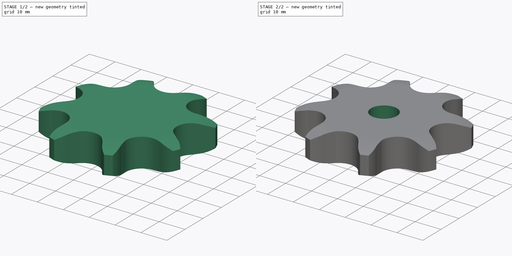
[diagram: build sequence overview — one tinted view per stage of 2, left to right]
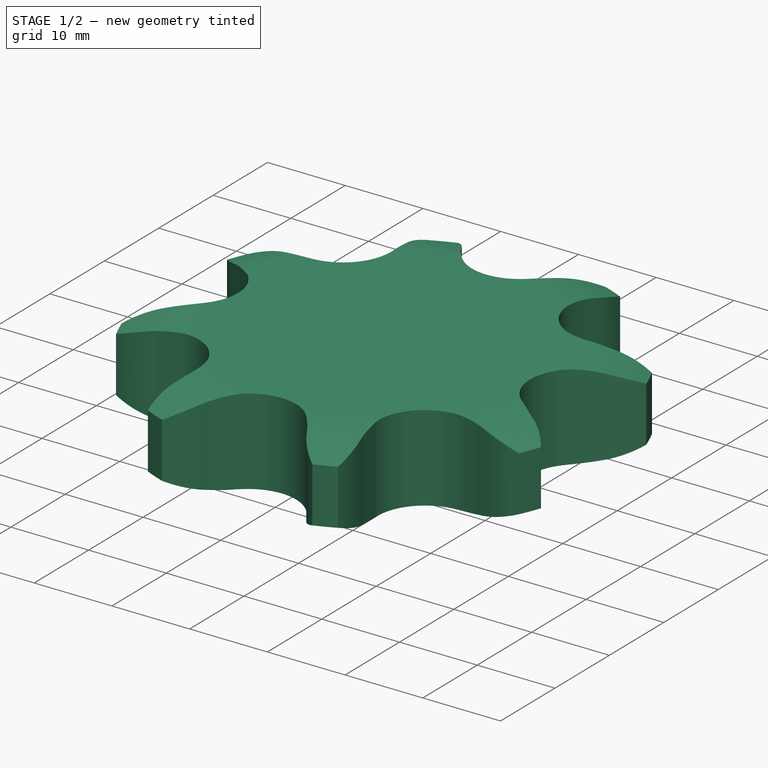
[diagram: stage 1 of 2 — iso view after this stage's code; geometry added in this stage tinted green]
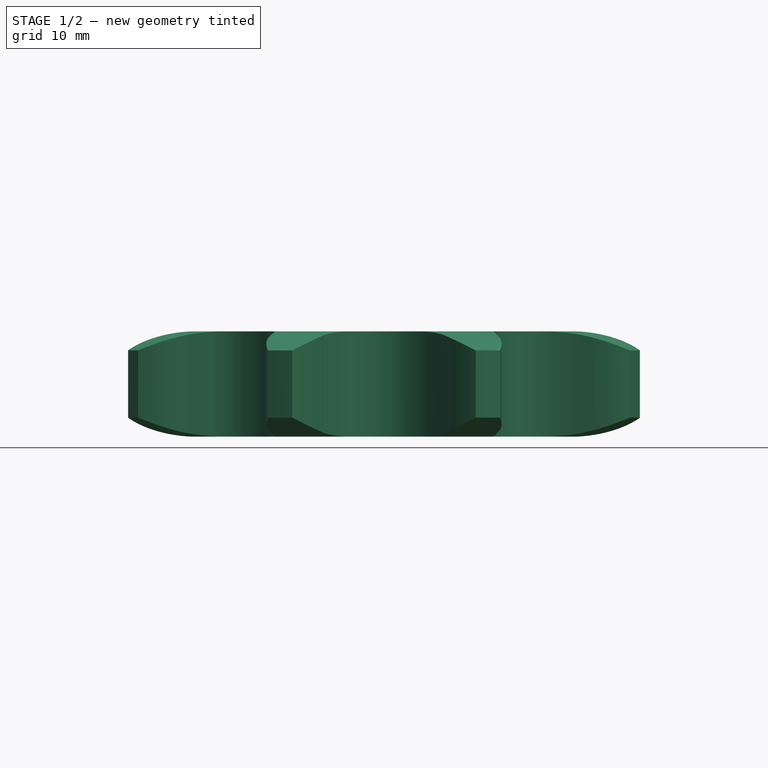
[diagram: stage 1 of 2 — front view after this stage's code; geometry added in this stage tinted green]
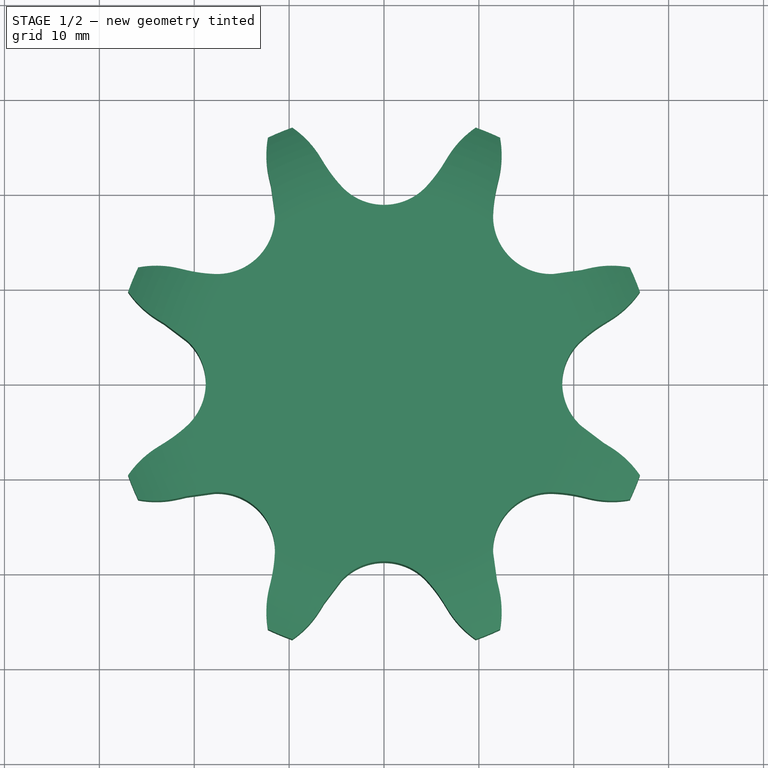
[diagram: stage 1 of 2 — top view after this stage's code; geometry added in this stage tinted green]
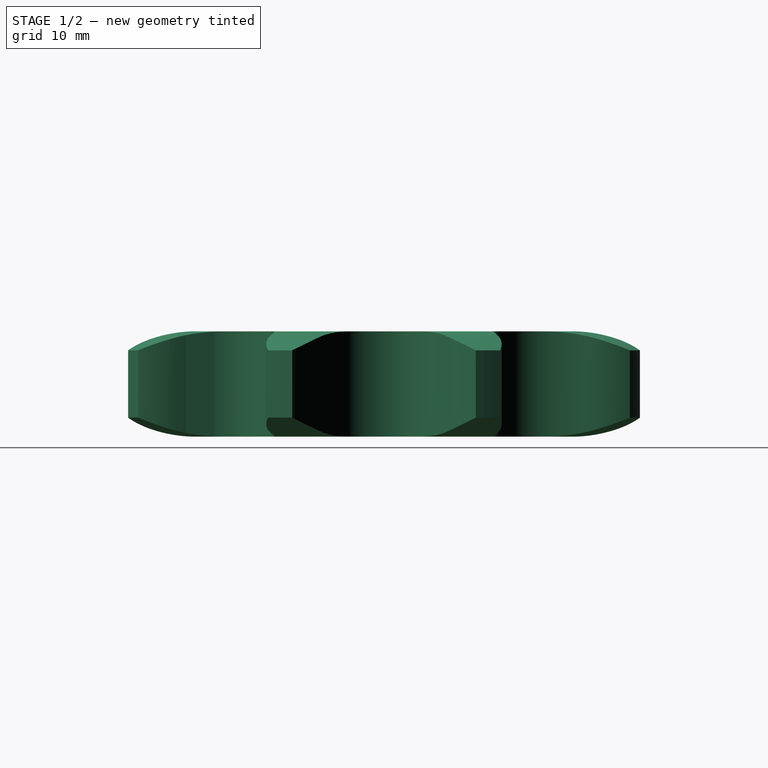
[diagram: stage 1 of 2 — right view after this stage's code; geometry added in this stage tinted green]
FCSTD DOCUMENT  (FreeCAD 0.21R33675 (Git))
Label: Plate Wheel simplex ¾x⁷⁄₁₆
License: Attribution 4.0 International (CC BY 4.0)
LicenseURL: http://creativecommons.org/licenses/by/4.0/
objects: Sketcher::SketchObject×2, Spreadsheet::Sheet×1, Part::Part2DObjectPython×1, PartDesign::Pad×1, PartDesign::Groove×1, PartDesign::Pocket×1, PartDesign::Body×1
note: 10 computed .brp shape members not serialized (recipe doc carries the construction recipe); baked Part::Feature solids carry a one-line shape summary decoded from their .brp

FEATURE [Spreadsheet::Sheet] Spreadsheet  label="Data"
  TeethNumber = 0
  cells = A1='Teeth Number; B1='P (Pitch); C1='Wc (Chain width); D1='Dr (Roller diameter); E1='Tr (Tooth radius); F1='Rw (Radius width); G1='Wt (Tooth width); H1='z (Number of teeth); I1='De (External Diameter); J1='Dp (pitch diameter); K1='D (Hole diameter); L1='H (Total height); A2==hiddenref(.TeethNumber.String); B2(P)==.B3; C2(Wc)==.C3; D2(Dr)==.D3; E2(Tr)==.E3; F2(Rw)==.F3; G2(Wt)==.G3; H2(z)==.H3; I2(De)==.I3; J2(Dp)==.J3; K2(D)==.K3; L2(H)==.L3; A3='Z 8; B3=19.05; C3=11.68; D3=12.07; E3=19; F3=2; G3=11.1; H3=8; I3=57.3; J3=49.78; K3=10; L3=11.1; A4='Z 9; B4=19.05; C4=11.68; D4=12.07; E4=19; F4=2; G4=11.1; H4=9; I4=62; J4=55.7; K4=10; L4=11.1; A5='Z 10; B5=19.05; C5=11.68; D5=12.07; E5=19; F5=2; G5=11.1; H5=10; I5=69; J5=61.64; K5=10; L5=11.1; A6='Z 11; B6=19.05; C6=11.68; D6=12.07; E6=19; F6=2; G6=11.1; H6=11; I6=75; J6=67.61; K6=12; L6=11.1; A7='Z 12; B7=19.05; C7=11.68; D7=12.07; E7=19; F7=2; G7=11.1; H7=12; I7=81.5; J7=73.6; K7=14; L7=11.1; A8='Z 13; B8=19.05; C8=11.68; D8=12.07; E8=19; F8=2; G8=11.1; H8=13; I8=87.5; J8=79.59; K8=14; L8=11.1; A9='Z 14; B9=19.05; C9=11.68; D9=12.07; E9=19; F9=2; G9=11.1; H9=14; I9=93.6; J9=85.61; K9=14; L9=11.1; A10='Z 15; B10=19.05; C10=11.68; D10=12.07; E10=19; F10=2; G10=11.1; H10=15; I10=99.8; J10=91.63; K10=14; L10=11.1; A11='Z 16; B11=19.05; C11=11.68; D11=12.07; E11=19; F11=2; G11=11.1; H11=16; I11=105.5; J11=97.65; K11=14; L11=11.1; A12='Z 17; B12=19.05; C12=11.68; D12=12.07; E12=19; F12=2; G12=11.1; H12=17; I12=111.5; J12=103.67; K12=14; L12=11.1; A13='Z 18; B13=19.05; C13=11.68; D13=12.07; E13=19; F13=2; G13=11.1; H13=18; I13=118; J13=109.71; K13=14; L13=11.1; A14='Z 19; B14=19.05; C14=11.68; D14=12.07; E14=19; F14=2; G14=11.1; H14=19; I14=124.2; J14=115.75; K14=14; L14=11.1; A15='Z 20; B15=19.05; C15=11.68; D15=12.07; E15=19; F15=2; G15=11.1; H15=20; I15=129.7; J15=121.78; K15=14; L15=11.1; A16='Z 21; B16=19.05; C16=11.68; D16=12.07; E16=19; F16=2; G16=11.1; H16=21; I16=136; J16=127.82; K16=16; L16=11.1; A17='Z 22; B17=19.05; C17=11.68; D17=12.07; E17=19; F17=2; G17=11.1; H17=22; +100 more cells
  expr: .TeethNumber.Enum = cells[<<A3:|>>]
  expr: .cells.Bind.B2.ZZ2 = tuple(.cells; <<B>> + str(hiddenref(TeethNumber) + 3); <<ZZ>> + str(hiddenref(TeethNumber) + 3))
FEATURE [Sketcher::SketchObject] Sketch  label="Radius"
  FullyConstrained = true
  MapMode = 5
  Placement = pos=(0,0,0) rot=(1,0,0;1.5708rad)
  Support = -> [XZ_Plane]
  expr: .Constraints.Re = <<Data>>.De / 2
  expr: .Constraints.Rw = <<Data>>.Rw
  expr: .Constraints.Tr = <<Data>>.Tr
  expr: .Constraints.Wt = <<Data>>.Wt
  sketch-geometry (10):
    g0: LineSegment StartX=20.1647 StartY=0 StartZ=0 EndX=28.65 EndY=0 EndZ=0
    g1: LineSegment StartX=28.65 StartY=0 StartZ=0 EndX=28.65 EndY=2 EndZ=0
    g2: ArcOfCircle CenterX=20.1647 CenterY=19 CenterZ=0 NormalX=0 NormalY=0 NormalZ=1 AngleXU=0 Radius=19 StartAngle=4.71239 EndAngle=5.17534
    g3: LineSegment StartX=28.65 StartY=2 StartZ=0 EndX=28.65 EndY=9.1 EndZ=0
    g4: LineSegment StartX=20.1647 StartY=11.1 StartZ=0 EndX=28.65 EndY=11.1 EndZ=0
    g5: LineSegment StartX=28.65 StartY=11.1 StartZ=0 EndX=28.65 EndY=9.1 EndZ=0
    g6: ArcOfCircle CenterX=20.1647 CenterY=-7.9 CenterZ=0 NormalX=0 NormalY=0 NormalZ=1 AngleXU=0 Radius=19 StartAngle=1.10784 EndAngle=1.5708
    g7: LineSegment StartX=28.65 StartY=11.1 StartZ=0 EndX=37.1353 EndY=11.1 EndZ=0
    g8: LineSegment StartX=37.1353 StartY=11.1 StartZ=0 EndX=37.1353 EndY=0 EndZ=0
    g9: LineSegment StartX=37.1353 StartY=0 StartZ=0 EndX=28.65 EndY=0 EndZ=0
  constraints (28):
    c: PointOnObject(g0,g-1)
    c: Horizontal(g0)
    c: Coincident(g0,g1)
    c: Vertical(g1)
    c: Tangent(g2,g0) = -1.5708
    c: Coincident(g2,g1)
    c: Coincident(g3,g1)
    c: Vertical(g3)
    c: Horizontal(g4)
    c: Coincident(g4,g5)
    c: Vertical(g5)
    c: Coincident(g6,g5)
    c: Tangent(g6,g4) = 1.5708
    c: Coincident(g5,g3)
    c: Equal(g2,g6)
    c: Equal(g5,g1)
    c: Radius(g2) = 19  'Tr'
    c: DistanceY(g0,g4) = 11.1  'Wt'
    c: DistanceX(g0) = 28.65  'Re'
    c: DistanceY(g1,g1) = 2  'Rw'
    c: Coincident(g4,g7)
    c: Coincident(g7,g8)
    c: Vertical(g8)
    c: Coincident(g8,g9)
    c: Coincident(g9,g0)
    c: Horizontal(g7)
    c: Horizontal(g9)
    c: Equal(g0,g9)
FEATURE [Part::Part2DObjectPython] Sprocket  label="Teeth sketch"  # Draft 2D object (typed FeaturePython)
  ANSISize = 60
  NumberOfTeeth = 8
  Pitch = 19.05
  RollerDiameter = 12.07
  expr: NumberOfTeeth = <<Data>>.z
  expr: Pitch = <<Data>>.P
  expr: RollerDiameter = <<Data>>.Dr
FEATURE [PartDesign::Pad] Pad  label="Teeth"
  Direction = (0,0,1)
  Length = 11.1
  Length2 = 100
  Profile = -> Sprocket
  Type = 0
  expr: Length = <<Data>>.Wt
FEATURE [PartDesign::Groove] Groove  label="Teeth Radius"
  Angle = 360
  Axis = (-3e-16,3e-16,1)
  Base = (0,0,0)
  BaseFeature = -> Pad
  Profile = -> Sketch
  ReferenceAxis = -> Z_Axis
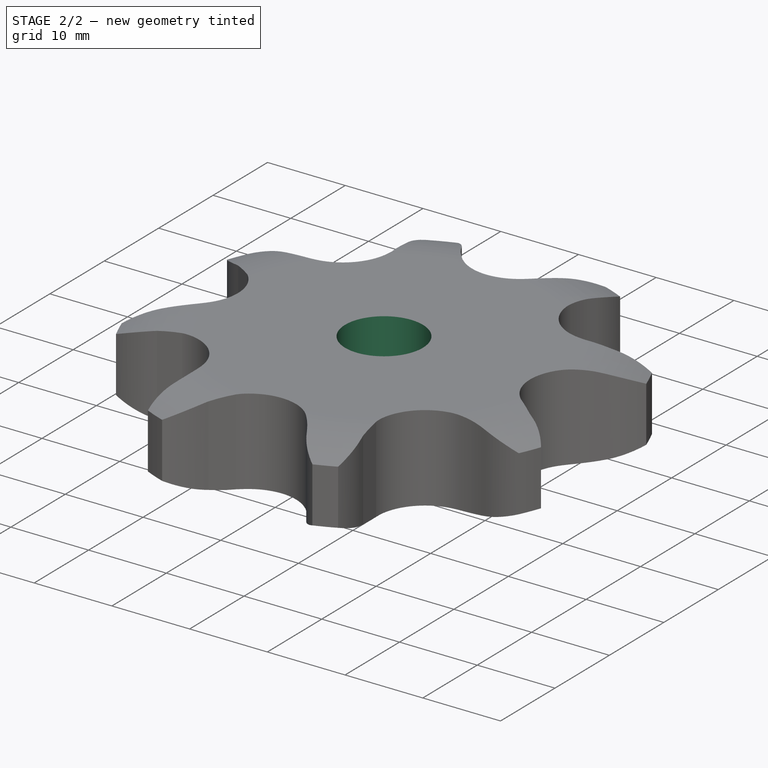
[diagram: stage 2 of 2 — iso view after this stage's code; geometry added in this stage tinted green]
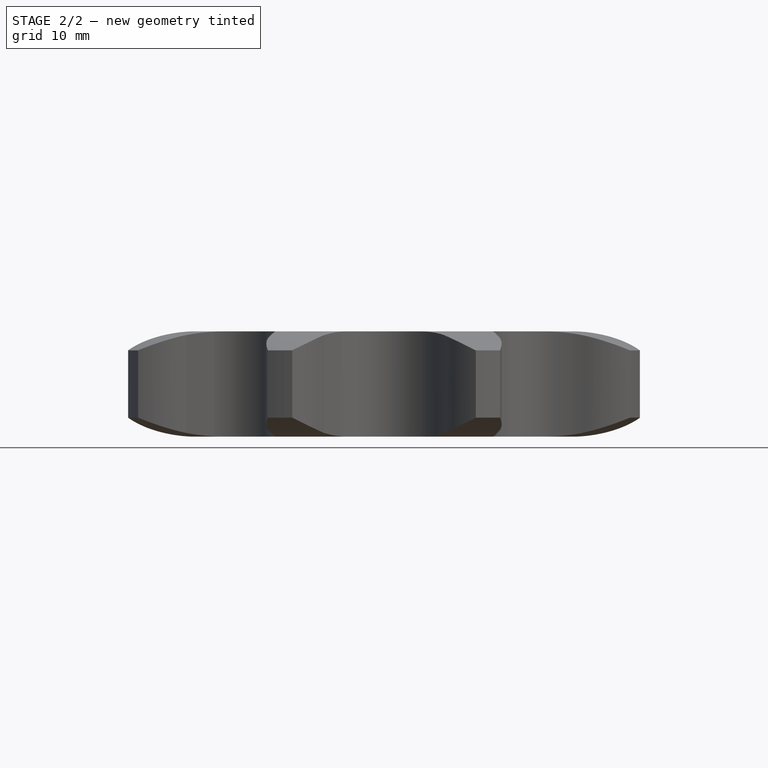
[diagram: stage 2 of 2 — front view after this stage's code; geometry added in this stage tinted green]
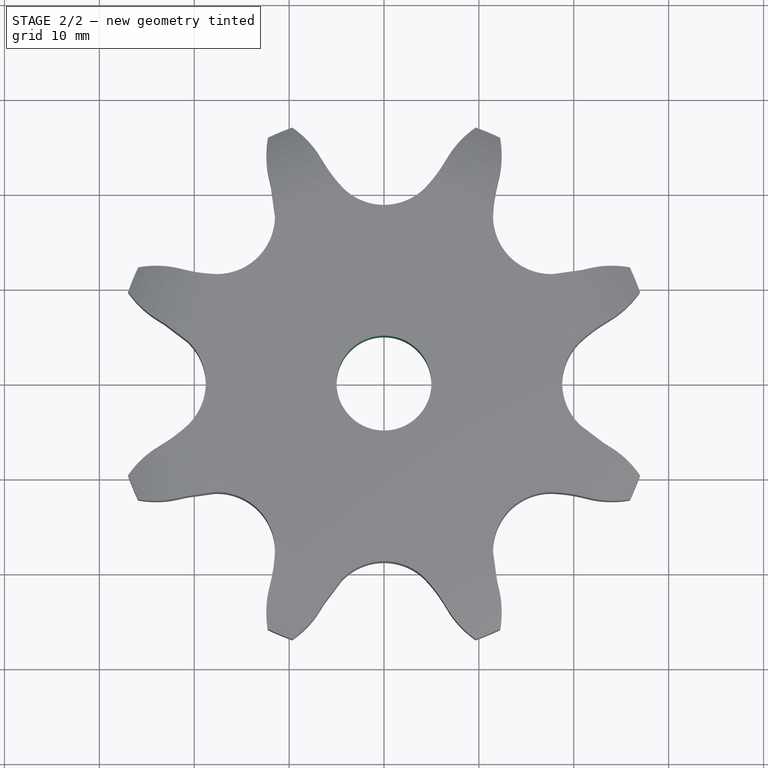
[diagram: stage 2 of 2 — top view after this stage's code; geometry added in this stage tinted green]
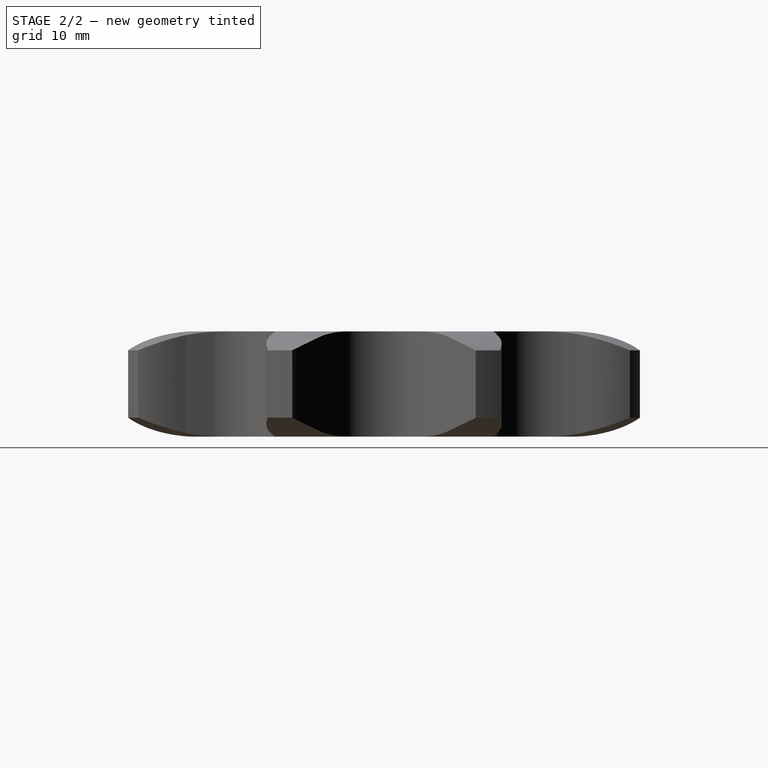
[diagram: stage 2 of 2 — right view after this stage's code; geometry added in this stage tinted green]
FEATURE [Sketcher::SketchObject] Sketch001  label="Hole Sketch"
  FullyConstrained = true
  MapMode = 5
  Support = -> [XY_Plane]
  expr: .Constraints.D = <<Data>>.D
  sketch-geometry (1):
    g0: Circle CenterX=0 CenterY=0 CenterZ=0 NormalX=0 NormalY=0 NormalZ=1 AngleXU=0 Radius=5
  constraints (2):
    c: Coincident(g0,g-1)
    c: Diameter(g0) = 10  'D'
FEATURE [PartDesign::Pocket] Pocket  label="Hole"
  BaseFeature = -> Groove
  Direction = (0,0,-1)
  Length = 5
  Length2 = 100
  Midplane = true
  Profile = -> Sketch001
  Type = 1
FEATURE [PartDesign::Body] Body  label="Plate Wheel simplex ¾x⁷⁄₁₆"
  Group = -> [Sprocket,Pad,Sketch,Groove,Sketch001,Pocket]
  Origin = -> Origin
  Tip = -> Pocket
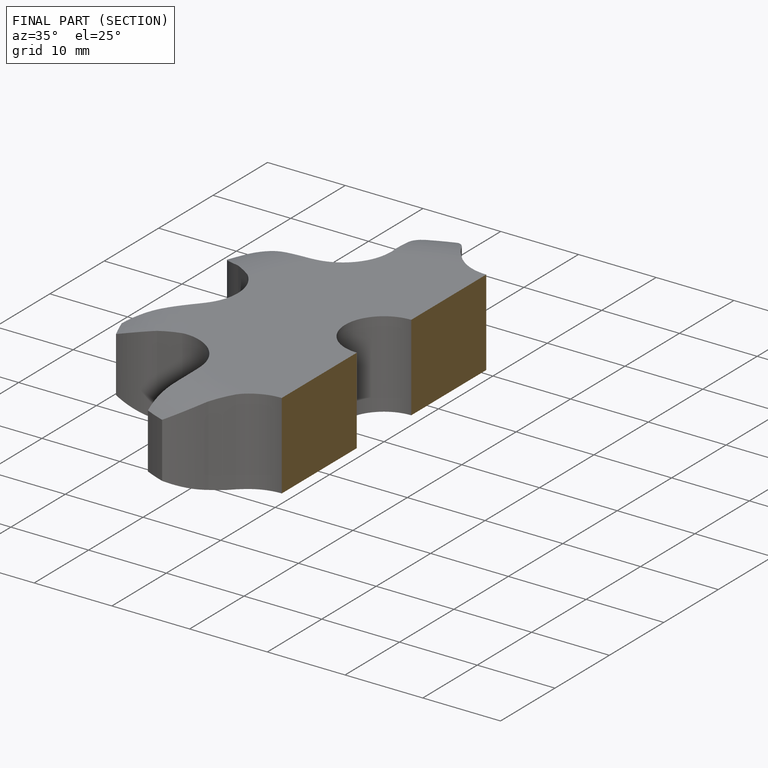
[diagram: finished part — half-section view (interior)]
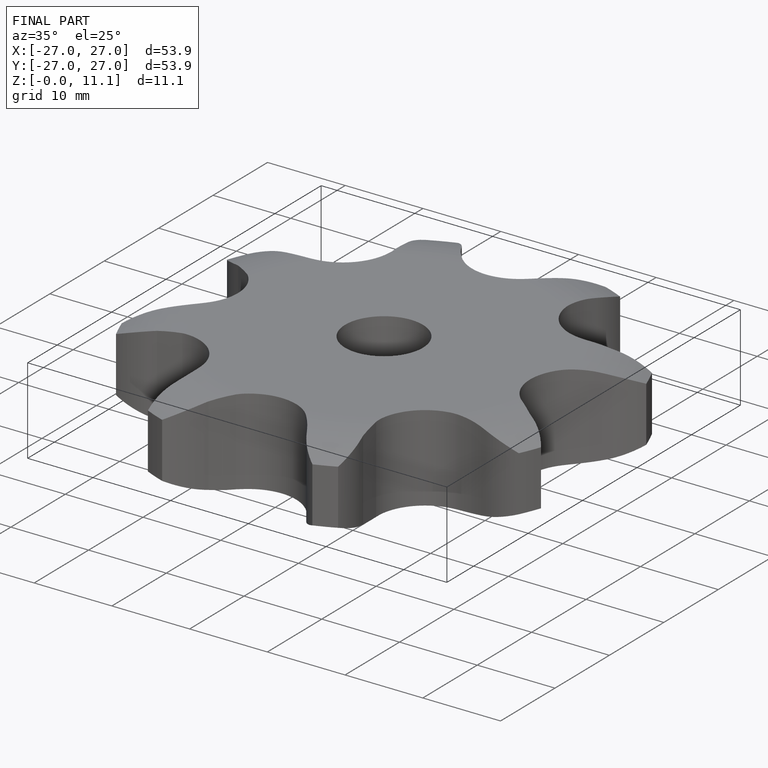
[diagram: finished part — iso view with bounding-box wireframe]
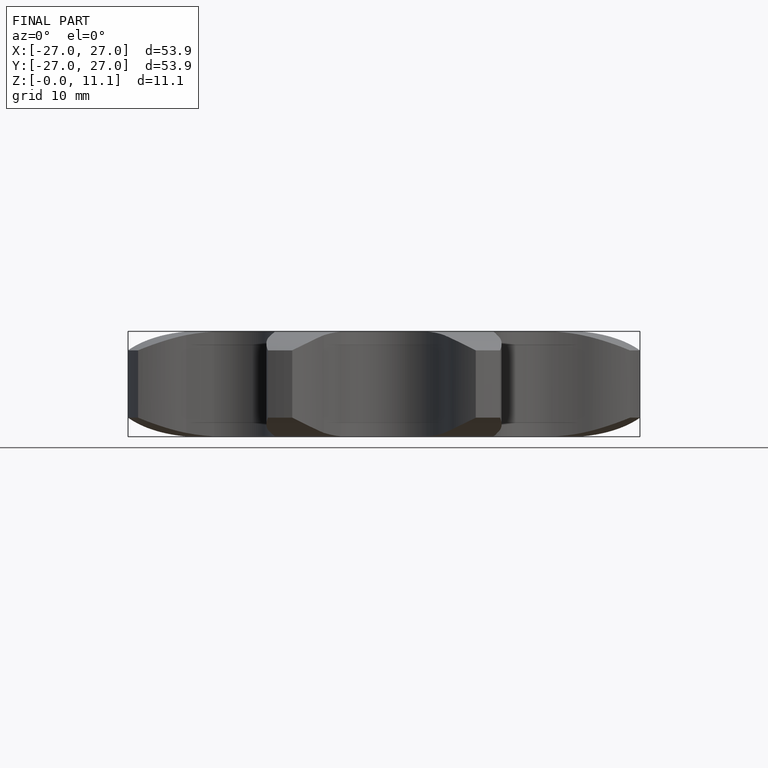
[diagram: finished part — front view with bounding-box wireframe]
